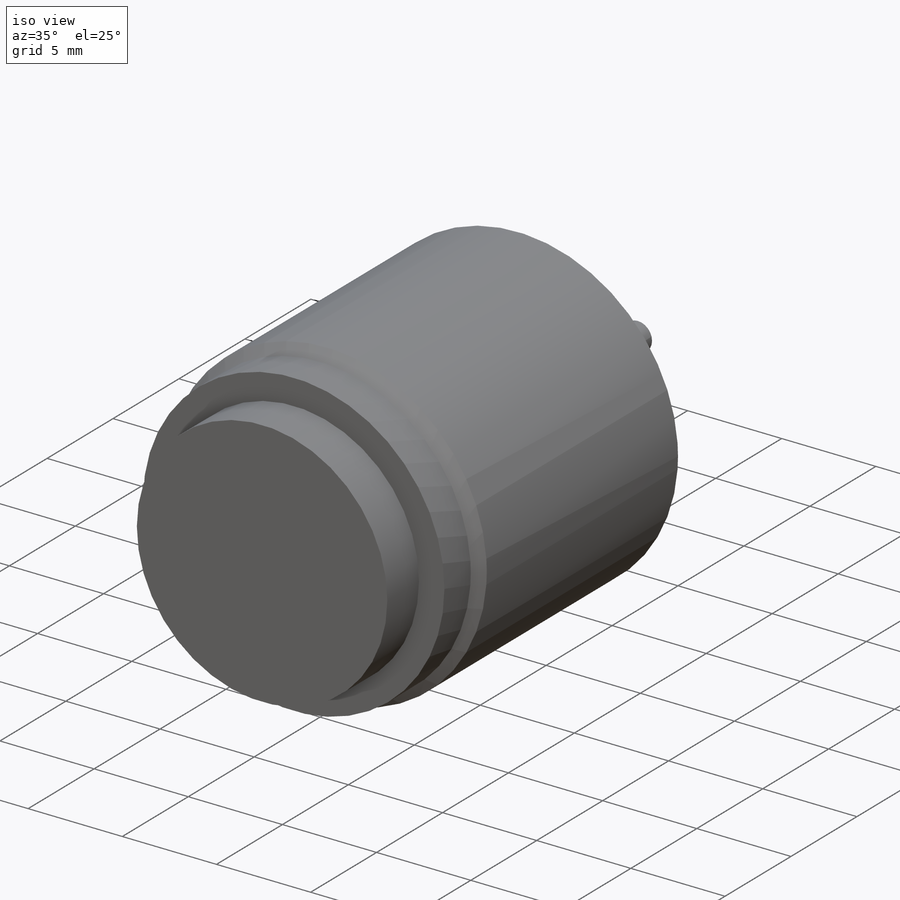
[diagram: iso view]
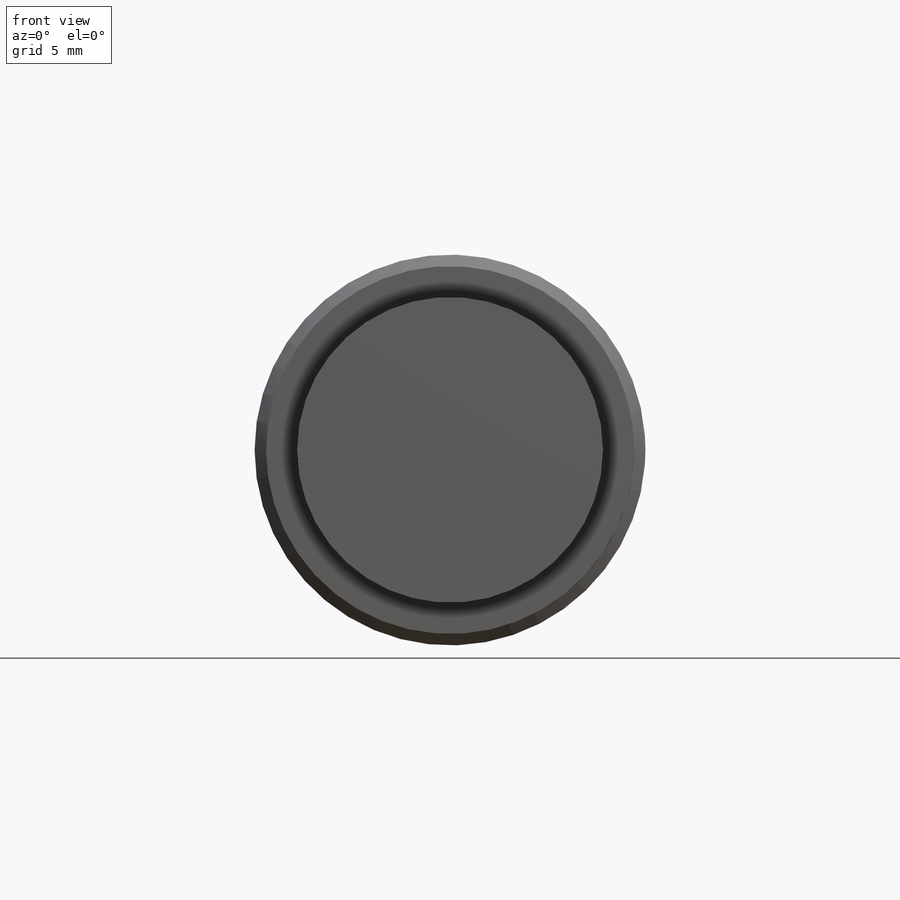
[diagram: front view]
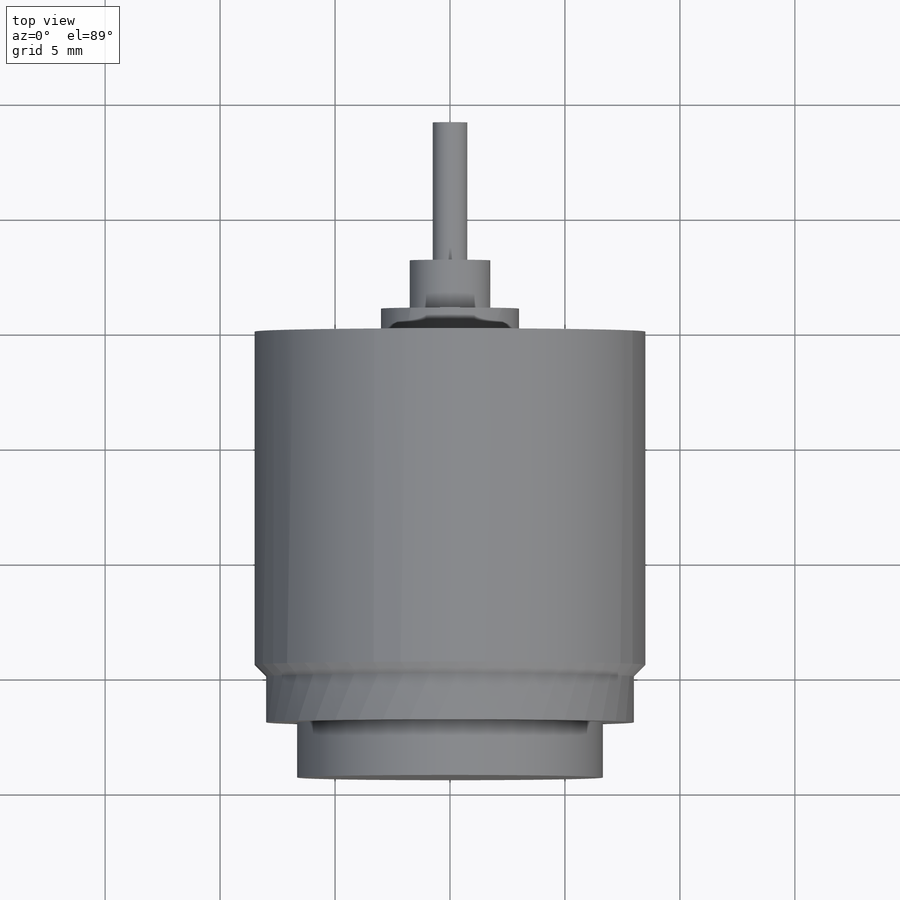
[diagram: top view]
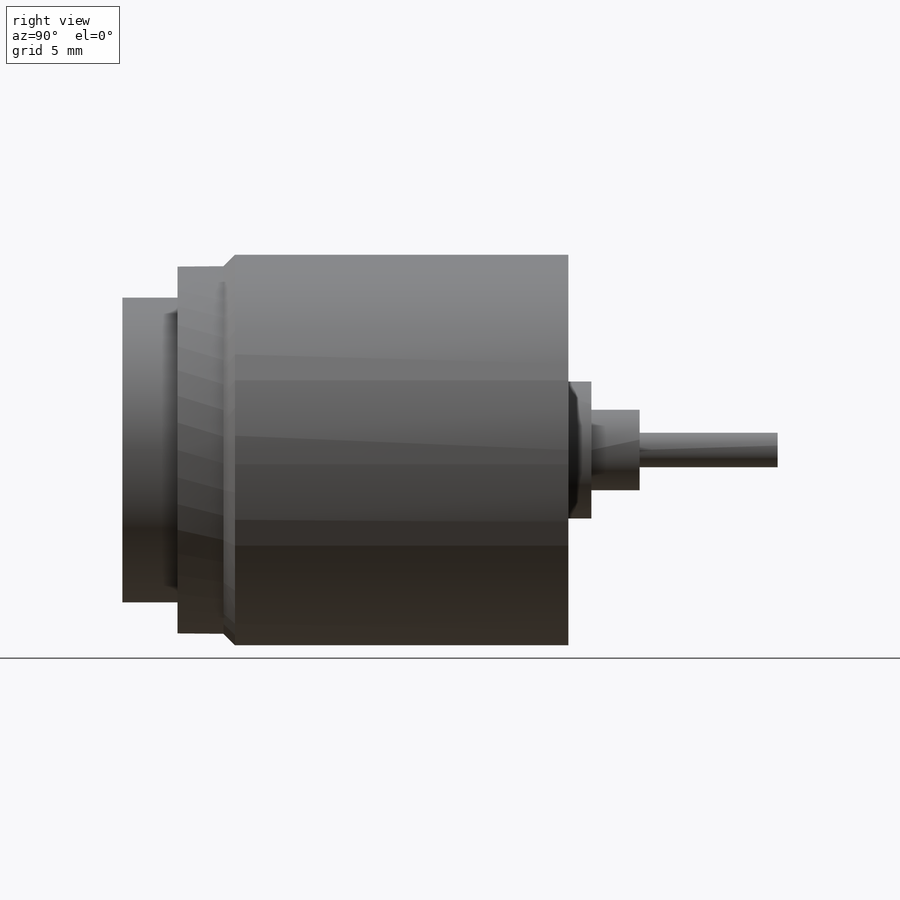
[diagram: right view]
SOLIDWORKS PART (.sldprt)
format: sldprt  version: not decoded by parser v0  size: 242,176 bytes
history: native  units: mm
features: sketch x7, extrude x6, material x1, chamfer x1, cut_extrude x1 (+12 scaffold rows collapsed)
feature tree (28):
  scaffold x12  (default folders/planes/origin — collapsed)
  material  "Material <not specified>"
  sketch  "Sketch2"  dims[D1=17.0mm]
  extrude  "Boss-Extrude1"  Depth=15mm
  chamfer  "Chamfer1"  Distance=0.5mm Angle=45deg
  sketch  "Sketch3"  dims[D1=16.0mm]
  extrude  "Boss-Extrude2"  Depth=2mm
  sketch  "Sketch4"  dims[D1=13.3mm]
  extrude  "Boss-Extrude3"  Depth=2.4mm
  sketch  "Sketch5"  dims[D1=10.0mm D2=1.6mm D3=6.0]
  cut_extrude  "Cut-Extrude1"  Depth=1.6mm
  sketch  "Sketch6"  dims[D1=6.0mm]
  extrude  "Boss-Extrude4"  Depth=1mm
  sketch  "Sketch7"  dims[D1=3.5mm]
  extrude  "Boss-Extrude5"  Depth=2.1mm
  sketch  "Sketch8"  dims[D1=1.5mm]
  extrude  "Boss-Extrude6"  Depth=6mm
decode coverage: 15 of 15 modeling features carry decoded parameters
note: suppression state not decoded; provenance and decode notes live in map.json
